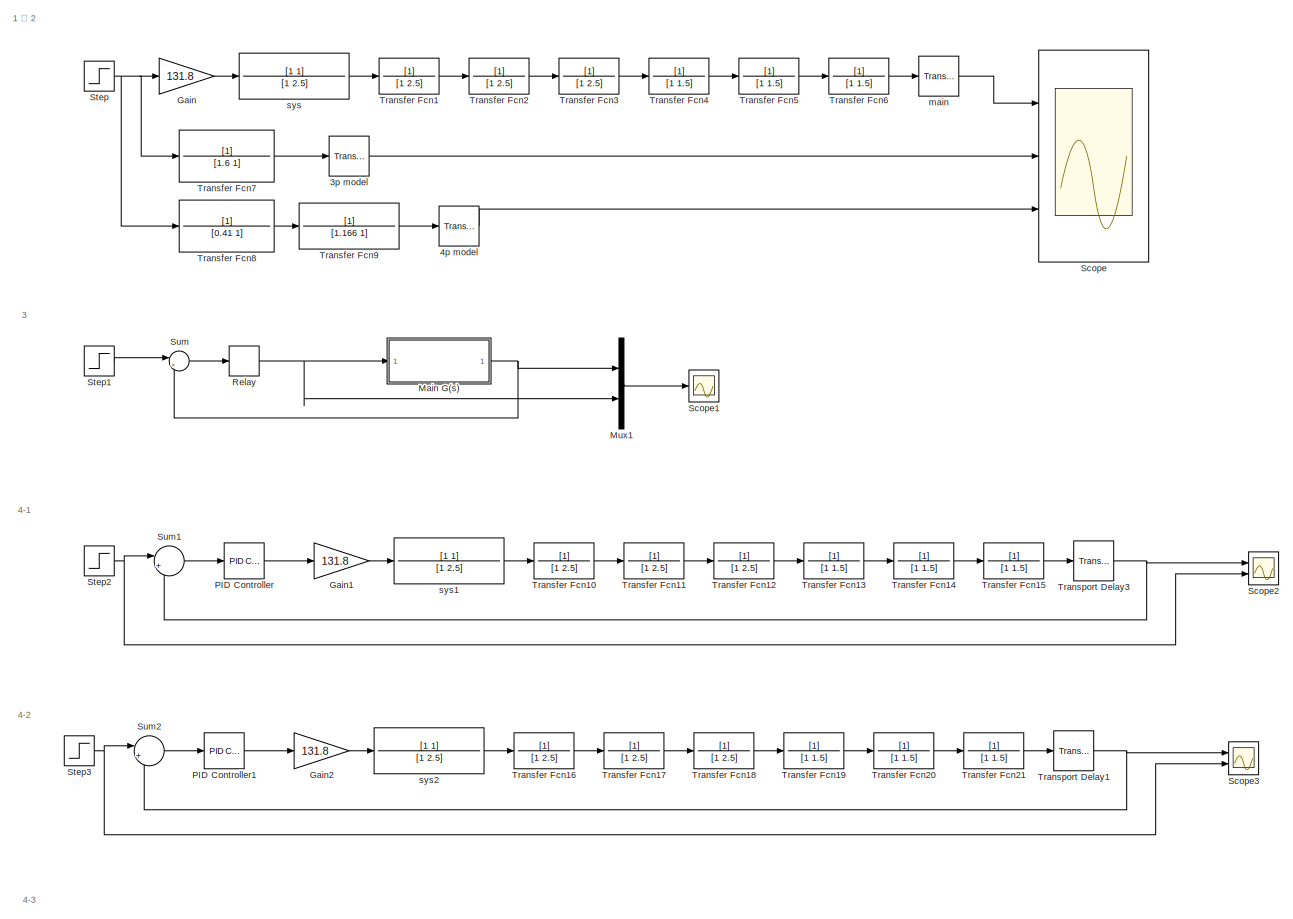
[diagram: root canvas - part 1/3, full width, top band]
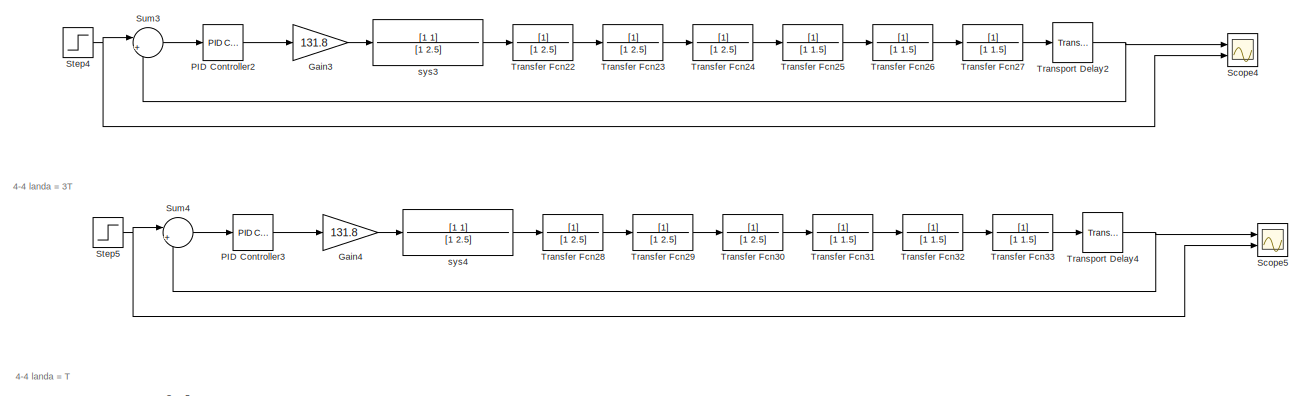
[diagram: root canvas - part 2/3, full width, middle band]
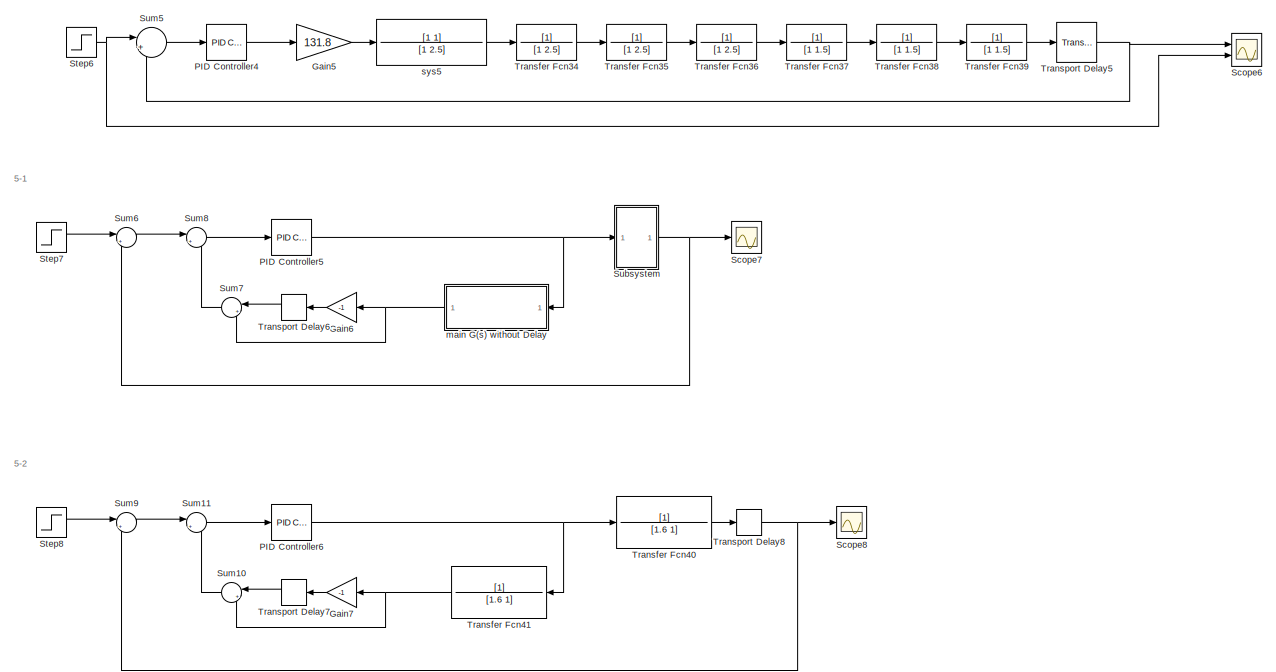
[diagram: root canvas - part 3/3, full width, bottom band]
MODEL slx_435d11db0b20
KIND model
CONFIG AbsTol = auto
CONFIG EnableMultiTasking = off
CONFIG FixedStep = auto
CONFIG MaxStep = auto
CONFIG MinStep = auto
CONFIG RelTol = 1e-3
CONFIG SampleTimeConstraint = Unconstrained
CONFIG SolverName = VariableStepAuto
CONFIG StartTime = 0.0
CONFIG StopTime = 200
BLOCK [TransportDelay] 3p model
  DelayTime = 3.7
  Ports = [1, 1]
BLOCK [TransportDelay] 4p model
  DelayTime = 3.7
  Ports = [1, 1]
BLOCK [Gain] Gain
  Gain = 131.8
BLOCK [Gain] Gain1
  Gain = 131.8
BLOCK [Gain] Gain2
  Gain = 131.8
BLOCK [Gain] Gain3
  Gain = 131.8
BLOCK [Gain] Gain4
  Gain = 131.8
BLOCK [Gain] Gain5
  Gain = 131.8
BLOCK [Gain] Gain6
  Gain = -1
BLOCK [Gain] Gain7
  Gain = -1
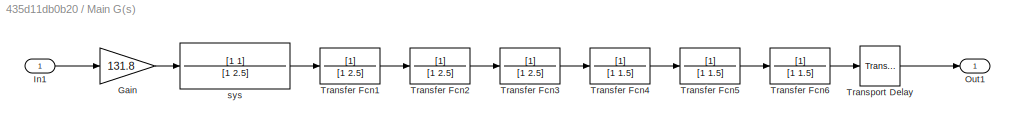
BLOCK [SubSystem] Main G(s)
  Ports = [1, 1]
  RequestExecContextInheritance = off
BLOCK [Gain] Main G(s)/Gain
  Gain = 131.8
BLOCK [Inport] Main G(s)/In1
BLOCK [Outport] Main G(s)/Out1
BLOCK [TransferFcn] Main G(s)/Transfer Fcn1
  Denominator = [1 2.5]
BLOCK [TransferFcn] Main G(s)/Transfer Fcn2
  Denominator = [1 2.5]
BLOCK [TransferFcn] Main G(s)/Transfer Fcn3
  Denominator = [1 2.5]
BLOCK [TransferFcn] Main G(s)/Transfer Fcn4
  Denominator = [1 1.5]
BLOCK [TransferFcn] Main G(s)/Transfer Fcn5
  Denominator = [1 1.5]
BLOCK [TransferFcn] Main G(s)/Transfer Fcn6
  Denominator = [1 1.5]
BLOCK [TransportDelay] Main G(s)/Transport Delay
  DelayTime = 2.5
  Ports = [1, 1]
BLOCK [TransferFcn] Main G(s)/sys
  Denominator = [1 2.5]
  Numerator = [1 1]
BLOCK [Mux] Mux1
  DisplayOption = bar
  Inputs = 2
  Ports = [2, 1]
BLOCK [Reference] PID Controller  REF=pid_lib/PID Controller
  Ports = [1, 1]
  SourceBlock = pid_lib/PID Controller
  SourceProductBaseCode = SL
  SourceType = PID 1dof
BLOCK [Reference] PID Controller1  REF=pid_lib/PID Controller
  Ports = [1, 1]
  SourceBlock = pid_lib/PID Controller
  SourceProductBaseCode = SL
  SourceType = PID 1dof
BLOCK [Reference] PID Controller2  REF=pid_lib/PID Controller
  Ports = [1, 1]
  SourceBlock = pid_lib/PID Controller
  SourceProductBaseCode = SL
  SourceType = PID 1dof
BLOCK [Reference] PID Controller3  REF=pid_lib/PID Controller
  Ports = [1, 1]
  SourceBlock = pid_lib/PID Controller
  SourceProductBaseCode = SL
  SourceType = PID 1dof
BLOCK [Reference] PID Controller4  REF=pid_lib/PID Controller
  Ports = [1, 1]
  SourceBlock = pid_lib/PID Controller
  SourceProductBaseCode = SL
  SourceType = PID 1dof
BLOCK [Reference] PID Controller5  REF=pid_lib/PID Controller
  Ports = [1, 1]
  SourceBlock = pid_lib/PID Controller
  SourceProductBaseCode = SL
  SourceType = PID 1dof
BLOCK [Reference] PID Controller6  REF=pid_lib/PID Controller
  Ports = [1, 1]
  SourceBlock = pid_lib/PID Controller
  SourceProductBaseCode = SL
  SourceType = PID 1dof
BLOCK [Relay] Relay
  OffOutputValue = -5
  OnOutputValue = 5
BLOCK [Scope] Scope
  Floating = off
  NumInputPorts = 3
  Ports = [3]
  ScopeSpecificationString = Simulink.scopes.TimeScopeBlockCfg('CurrentConfiguration', extmgr.ConfigurationSet(extmgr.Configuration('Core','General UI',true),extmgr.Configuration('Core','Source UI',true),extmgr.Configuration('Sources','WiredSimulink',true),extmgr.Configuration('Visuals','Time Domain',true,'SerializedDisplays',{struct('MinYLimReal','-0.12517','MaxYLimReal','1.12652','YLabelReal','','MinYLimMag','0.00000','MaxY...<+1454ch>
BLOCK [Scope] Scope1
  Floating = off
  NumInputPorts = 1
  Ports = [1]
  ScopeSpecificationString = Simulink.scopes.TimeScopeBlockCfg('CurrentConfiguration', extmgr.ConfigurationSet(extmgr.Configuration('Core','General UI',true,'FigureColor',[0 0 0]),extmgr.Configuration('Core','Source UI',true),extmgr.Configuration('Sources','WiredSimulink',true,'DataLoggingVariableName','ScopeData1'),extmgr.Configuration('Visuals','Time Domain',true,'SerializedDisplays',{struct('MinYLimReal','-6.25','MaxYLimRe...<+2168ch>
BLOCK [Scope] Scope2
  Floating = off
  NumInputPorts = 2
  Ports = [2]
  ScopeSpecificationString = Simulink.scopes.TimeScopeBlockCfg('CurrentConfiguration', extmgr.ConfigurationSet(extmgr.Configuration('Core','General UI',true),extmgr.Configuration('Core','Source UI',true),extmgr.Configuration('Sources','WiredSimulink',true,'DataLoggingVariableName','ScopeData1'),extmgr.Configuration('Visuals','Time Domain',true,'SerializedDisplays',{struct('MinYLimReal','-0.125','MaxYLimReal','1.125','YLabelRe...<+1411ch>
BLOCK [Scope] Scope3
  Floating = off
  NumInputPorts = 2
  Ports = [2]
  ScopeSpecificationString = Simulink.scopes.TimeScopeBlockCfg('CurrentConfiguration', extmgr.ConfigurationSet(extmgr.Configuration('Core','General UI',true),extmgr.Configuration('Core','Source UI',true),extmgr.Configuration('Sources','WiredSimulink',true,'DataLoggingVariableName','ScopeData1'),extmgr.Configuration('Visuals','Time Domain',true,'SerializedDisplays',{struct('MinYLimReal','-0.16438','MaxYLimReal','1.47938','YLab...<+1423ch>
BLOCK [Scope] Scope4
  Floating = off
  NumInputPorts = 2
  Ports = [2]
  ScopeSpecificationString = Simulink.scopes.TimeScopeBlockCfg('CurrentConfiguration', extmgr.ConfigurationSet(extmgr.Configuration('Core','General UI',true),extmgr.Configuration('Core','Source UI',true),extmgr.Configuration('Sources','WiredSimulink',true,'DataLoggingVariableName','ScopeData2'),extmgr.Configuration('Visuals','Time Domain',true,'SerializedDisplays',{struct('MinYLimReal','-0.125','MaxYLimReal','1.125','YLabelRe...<+1411ch>
BLOCK [Scope] Scope5
  Floating = off
  NumInputPorts = 2
  Ports = [2]
  ScopeSpecificationString = Simulink.scopes.TimeScopeBlockCfg('CurrentConfiguration', extmgr.ConfigurationSet(extmgr.Configuration('Core','General UI',true),extmgr.Configuration('Core','Source UI',true),extmgr.Configuration('Sources','WiredSimulink',true,'DataLoggingVariableName','ScopeData3'),extmgr.Configuration('Visuals','Time Domain',true,'SerializedDisplays',{struct('MinYLimReal','-0.125','MaxYLimReal','1.125','YLabelRe...<+1411ch>
BLOCK [Scope] Scope6
  Floating = off
  NumInputPorts = 2
  Ports = [2]
  ScopeSpecificationString = Simulink.scopes.TimeScopeBlockCfg('CurrentConfiguration', extmgr.ConfigurationSet(extmgr.Configuration('Core','General UI',true),extmgr.Configuration('Core','Source UI',true),extmgr.Configuration('Sources','WiredSimulink',true,'DataLoggingVariableName','ScopeData4'),extmgr.Configuration('Visuals','Time Domain',true,'SerializedDisplays',{struct('MinYLimReal','-0.21175','MaxYLimReal','1.90578','YLab...<+1423ch>
BLOCK [Scope] Scope7
  Floating = off
  NumInputPorts = 1
  Ports = [1]
  ScopeSpecificationString = Simulink.scopes.TimeScopeBlockCfg('CurrentConfiguration', extmgr.ConfigurationSet(extmgr.Configuration('Core','General UI',true,'FigureColor',[0 0 0]),extmgr.Configuration('Core','Source UI',true),extmgr.Configuration('Sources','WiredSimulink',true,'DataLoggingVariableName','ScopeData5'),extmgr.Configuration('Visuals','Time Domain',true,'SerializedDisplays',{struct('MinYLimReal','-0.16719','MaxYLi...<+1831ch>
BLOCK [Scope] Scope8
  Floating = off
  NumInputPorts = 1
  Ports = [1]
  ScopeSpecificationString = Simulink.scopes.TimeScopeBlockCfg('CurrentConfiguration', extmgr.ConfigurationSet(extmgr.Configuration('Core','General UI',true,'FigureColor',[0 0 0]),extmgr.Configuration('Core','Source UI',true),extmgr.Configuration('Sources','WiredSimulink',true,'DataLoggingVariableName','ScopeData1'),extmgr.Configuration('Visuals','Time Domain',true,'SerializedDisplays',{struct('MinYLimReal','-0.16719','MaxYLi...<+1831ch>
BLOCK [Step] Step
  SampleTime = 0
  Time = 0
BLOCK [Step] Step1
  SampleTime = 0
  Time = 0
BLOCK [Step] Step2
  SampleTime = 0
BLOCK [Step] Step3
  SampleTime = 0
BLOCK [Step] Step4
  SampleTime = 0
BLOCK [Step] Step5
  SampleTime = 0
BLOCK [Step] Step6
  SampleTime = 0
BLOCK [Step] Step7
  SampleTime = 0
  Time = 0
BLOCK [Step] Step8
  SampleTime = 0
  Time = 0
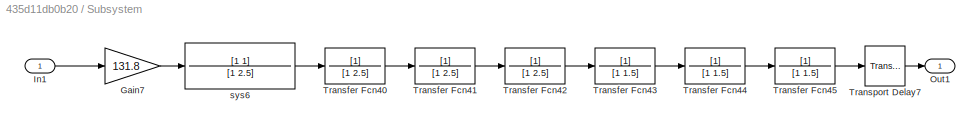
BLOCK [SubSystem] Subsystem
  Ports = [1, 1]
  RequestExecContextInheritance = off
BLOCK [Gain] Subsystem/Gain7
  Gain = 131.8
BLOCK [Inport] Subsystem/In1
BLOCK [Outport] Subsystem/Out1
BLOCK [TransferFcn] Subsystem/Transfer Fcn40
  Denominator = [1 2.5]
BLOCK [TransferFcn] Subsystem/Transfer Fcn41
  Denominator = [1 2.5]
BLOCK [TransferFcn] Subsystem/Transfer Fcn42
  Denominator = [1 2.5]
BLOCK [TransferFcn] Subsystem/Transfer Fcn43
  Denominator = [1 1.5]
BLOCK [TransferFcn] Subsystem/Transfer Fcn44
  Denominator = [1 1.5]
BLOCK [TransferFcn] Subsystem/Transfer Fcn45
  Denominator = [1 1.5]
BLOCK [TransportDelay] Subsystem/Transport Delay7
  DelayTime = 2.5
  Ports = [1, 1]
BLOCK [TransferFcn] Subsystem/sys6
  Denominator = [1 2.5]
  Numerator = [1 1]
BLOCK [Sum] Sum
  Inputs = |+-
  Ports = [2, 1]
BLOCK [Sum] Sum1
  Inputs = |+-
  Ports = [2, 1]
BLOCK [Sum] Sum10
  Inputs = |++
  Ports = [2, 1]
BLOCK [Sum] Sum11
  Inputs = |+-
  Ports = [2, 1]
BLOCK [Sum] Sum2
  Inputs = |+-
  Ports = [2, 1]
BLOCK [Sum] Sum3
  Inputs = |+-
  Ports = [2, 1]
BLOCK [Sum] Sum4
  Inputs = |+-
  Ports = [2, 1]
BLOCK [Sum] Sum5
  Inputs = |+-
  Ports = [2, 1]
BLOCK [Sum] Sum6
  Inputs = |+-
  Ports = [2, 1]
BLOCK [Sum] Sum7
  Inputs = |++
  Ports = [2, 1]
BLOCK [Sum] Sum8
  Inputs = |+-
  Ports = [2, 1]
BLOCK [Sum] Sum9
  Inputs = |+-
  Ports = [2, 1]
BLOCK [TransferFcn] Transfer Fcn1
  Denominator = [1 2.5]
BLOCK [TransferFcn] Transfer Fcn10
  Denominator = [1 2.5]
BLOCK [TransferFcn] Transfer Fcn11
  Denominator = [1 2.5]
BLOCK [TransferFcn] Transfer Fcn12
  Denominator = [1 2.5]
BLOCK [TransferFcn] Transfer Fcn13
  Denominator = [1 1.5]
BLOCK [TransferFcn] Transfer Fcn14
  Denominator = [1 1.5]
BLOCK [TransferFcn] Transfer Fcn15
  Denominator = [1 1.5]
BLOCK [TransferFcn] Transfer Fcn16
  Denominator = [1 2.5]
BLOCK [TransferFcn] Transfer Fcn17
  Denominator = [1 2.5]
BLOCK [TransferFcn] Transfer Fcn18
  Denominator = [1 2.5]
BLOCK [TransferFcn] Transfer Fcn19
  Denominator = [1 1.5]
BLOCK [TransferFcn] Transfer Fcn2
  Denominator = [1 2.5]
BLOCK [TransferFcn] Transfer Fcn20
  Denominator = [1 1.5]
BLOCK [TransferFcn] Transfer Fcn21
  Denominator = [1 1.5]
BLOCK [TransferFcn] Transfer Fcn22
  Denominator = [1 2.5]
BLOCK [TransferFcn] Transfer Fcn23
  Denominator = [1 2.5]
BLOCK [TransferFcn] Transfer Fcn24
  Denominator = [1 2.5]
BLOCK [TransferFcn] Transfer Fcn25
  Denominator = [1 1.5]
BLOCK [TransferFcn] Transfer Fcn26
  Denominator = [1 1.5]
BLOCK [TransferFcn] Transfer Fcn27
  Denominator = [1 1.5]
BLOCK [TransferFcn] Transfer Fcn28
  Denominator = [1 2.5]
BLOCK [TransferFcn] Transfer Fcn29
  Denominator = [1 2.5]
BLOCK [TransferFcn] Transfer Fcn3
  Denominator = [1 2.5]
BLOCK [TransferFcn] Transfer Fcn30
  Denominator = [1 2.5]
BLOCK [TransferFcn] Transfer Fcn31
  Denominator = [1 1.5]
BLOCK [TransferFcn] Transfer Fcn32
  Denominator = [1 1.5]
BLOCK [TransferFcn] Transfer Fcn33
  Denominator = [1 1.5]
BLOCK [TransferFcn] Transfer Fcn34
  Denominator = [1 2.5]
BLOCK [TransferFcn] Transfer Fcn35
  Denominator = [1 2.5]
BLOCK [TransferFcn] Transfer Fcn36
  Denominator = [1 2.5]
BLOCK [TransferFcn] Transfer Fcn37
  Denominator = [1 1.5]
BLOCK [TransferFcn] Transfer Fcn38
  Denominator = [1 1.5]
BLOCK [TransferFcn] Transfer Fcn39
  Denominator = [1 1.5]
BLOCK [TransferFcn] Transfer Fcn4
  Denominator = [1 1.5]
BLOCK [TransferFcn] Transfer Fcn40
  Denominator = [1.6 1]
BLOCK [TransferFcn] Transfer Fcn41
  Denominator = [1.6 1]
  NameLocation = top
BLOCK [TransferFcn] Transfer Fcn5
  Denominator = [1 1.5]
BLOCK [TransferFcn] Transfer Fcn6
  Denominator = [1 1.5]
BLOCK [TransferFcn] Transfer Fcn7
  Denominator = [1.6 1]
BLOCK [TransferFcn] Transfer Fcn8
  Denominator = [0.41 1]
BLOCK [TransferFcn] Transfer Fcn9
  Denominator = [1.166 1]
BLOCK [TransportDelay] Transport Delay1
  DelayTime = 2.5
  Ports = [1, 1]
BLOCK [TransportDelay] Transport Delay2
  DelayTime = 2.5
  Ports = [1, 1]
BLOCK [TransportDelay] Transport Delay3
  DelayTime = 2.5
  Ports = [1, 1]
BLOCK [TransportDelay] Transport Delay4
  DelayTime = 2.5
  Ports = [1, 1]
BLOCK [TransportDelay] Transport Delay5
  DelayTime = 2.5
  Ports = [1, 1]
BLOCK [TransportDelay] Transport Delay6
  DelayTime = 3.7
  Ports = [1, 1]
BLOCK [TransportDelay] Transport Delay7
  DelayTime = 3.7
  Ports = [1, 1]
BLOCK [TransportDelay] Transport Delay8
  DelayTime = 3.7
  NameLocation = top
  Ports = [1, 1]
BLOCK [TransportDelay] main
  DelayTime = 2.5
  Ports = [1, 1]
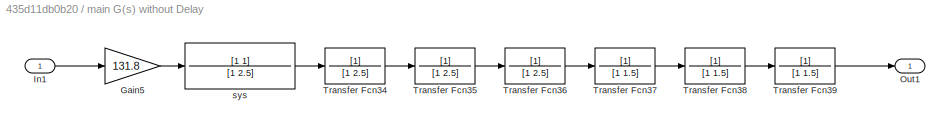
BLOCK [SubSystem] main G(s) without Delay
  NameLocation = top
  Ports = [1, 1]
  RequestExecContextInheritance = off
BLOCK [Gain] main G(s) without Delay/Gain5
  Gain = 131.8
BLOCK [Inport] main G(s) without Delay/In1
BLOCK [Outport] main G(s) without Delay/Out1
BLOCK [TransferFcn] main G(s) without Delay/Transfer Fcn34
  Denominator = [1 2.5]
BLOCK [TransferFcn] main G(s) without Delay/Transfer Fcn35
  Denominator = [1 2.5]
BLOCK [TransferFcn] main G(s) without Delay/Transfer Fcn36
  Denominator = [1 2.5]
BLOCK [TransferFcn] main G(s) without Delay/Transfer Fcn37
  Denominator = [1 1.5]
BLOCK [TransferFcn] main G(s) without Delay/Transfer Fcn38
  Denominator = [1 1.5]
BLOCK [TransferFcn] main G(s) without Delay/Transfer Fcn39
  Denominator = [1 1.5]
BLOCK [TransferFcn] main G(s) without Delay/sys
  Denominator = [1 2.5]
  Numerator = [1 1]
BLOCK [TransferFcn] sys
  Denominator = [1 2.5]
  Numerator = [1 1]
BLOCK [TransferFcn] sys1
  Denominator = [1 2.5]
  Numerator = [1 1]
BLOCK [TransferFcn] sys2
  Denominator = [1 2.5]
  Numerator = [1 1]
BLOCK [TransferFcn] sys3
  Denominator = [1 2.5]
  Numerator = [1 1]
BLOCK [TransferFcn] sys4
  Denominator = [1 2.5]
  Numerator = [1 1]
BLOCK [TransferFcn] sys5
  Denominator = [1 2.5]
  Numerator = [1 1]
ANNOTATION (root): 1 و 2
ANNOTATION (root): 3
ANNOTATION (root): 4-1
ANNOTATION (root): 4-2
ANNOTATION (root): 4-3
ANNOTATION (root): 4-4 landa = 3T
ANNOTATION (root): 4-4 landa = T
ANNOTATION (root): 5-1
ANNOTATION (root): 5-2
LINE 3p model:1 -> Scope:2
LINE 4p model:1 -> Scope:3
LINE Gain1:1 -> sys1:1
LINE Gain2:1 -> sys2:1
LINE Gain3:1 -> sys3:1
LINE Gain4:1 -> sys4:1
LINE Gain5:1 -> sys5:1
LINE Gain6:1 -> Transport Delay6:1
LINE Gain7:1 -> Transport Delay7:1
LINE Gain:1 -> sys:1
LINE Main G(s)/Gain:1 -> Main G(s)/sys:1
LINE Main G(s)/In1:1 -> Main G(s)/Gain:1
LINE Main G(s)/Transfer Fcn1:1 -> Main G(s)/Transfer Fcn2:1
LINE Main G(s)/Transfer Fcn2:1 -> Main G(s)/Transfer Fcn3:1
LINE Main G(s)/Transfer Fcn3:1 -> Main G(s)/Transfer Fcn4:1
LINE Main G(s)/Transfer Fcn4:1 -> Main G(s)/Transfer Fcn5:1
LINE Main G(s)/Transfer Fcn5:1 -> Main G(s)/Transfer Fcn6:1
LINE Main G(s)/Transfer Fcn6:1 -> Main G(s)/Transport Delay:1
LINE Main G(s)/Transport Delay:1 -> Main G(s)/Out1:1
LINE Main G(s)/sys:1 -> Main G(s)/Transfer Fcn1:1
NET Main G(s):1 -> Mux1:1, Sum:2
LINE Mux1:1 -> Scope1:1
LINE PID Controller1:1 -> Gain2:1
LINE PID Controller2:1 -> Gain3:1
LINE PID Controller3:1 -> Gain4:1
LINE PID Controller4:1 -> Gain5:1
NET PID Controller5:1 -> Subsystem:1, main G(s) without Delay:1
NET PID Controller6:1 -> Transfer Fcn40:1, Transfer Fcn41:1
LINE PID Controller:1 -> Gain1:1
NET Relay:1 -> Main G(s):1, Mux1:2
LINE Step1:1 -> Sum:1
NET Step2:1 -> Scope2:2, Sum1:1
NET Step3:1 -> Scope3:2, Sum2:1
NET Step4:1 -> Scope4:2, Sum3:1
NET Step5:1 -> Scope5:2, Sum4:1
NET Step6:1 -> Scope6:2, Sum5:1
LINE Step7:1 -> Sum6:1
LINE Step8:1 -> Sum9:1
NET Step:1 -> Gain:1, Transfer Fcn7:1, Transfer Fcn8:1
LINE Subsystem/Gain7:1 -> Subsystem/sys6:1
LINE Subsystem/In1:1 -> Subsystem/Gain7:1
LINE Subsystem/Transfer Fcn40:1 -> Subsystem/Transfer Fcn41:1
LINE Subsystem/Transfer Fcn41:1 -> Subsystem/Transfer Fcn42:1
LINE Subsystem/Transfer Fcn42:1 -> Subsystem/Transfer Fcn43:1
LINE Subsystem/Transfer Fcn43:1 -> Subsystem/Transfer Fcn44:1
LINE Subsystem/Transfer Fcn44:1 -> Subsystem/Transfer Fcn45:1
LINE Subsystem/Transfer Fcn45:1 -> Subsystem/Transport Delay7:1
LINE Subsystem/Transport Delay7:1 -> Subsystem/Out1:1
LINE Subsystem/sys6:1 -> Subsystem/Transfer Fcn40:1
NET Subsystem:1 -> Scope7:1, Sum6:2
LINE Sum10:1 -> Sum11:2
LINE Sum11:1 -> PID Controller6:1
LINE Sum1:1 -> PID Controller:1
LINE Sum2:1 -> PID Controller1:1
LINE Sum3:1 -> PID Controller2:1
LINE Sum4:1 -> PID Controller3:1
LINE Sum5:1 -> PID Controller4:1
LINE Sum6:1 -> Sum8:1
LINE Sum7:1 -> Sum8:2
LINE Sum8:1 -> PID Controller5:1
LINE Sum9:1 -> Sum11:1
LINE Sum:1 -> Relay:1
LINE Transfer Fcn10:1 -> Transfer Fcn11:1
LINE Transfer Fcn11:1 -> Transfer Fcn12:1
LINE Transfer Fcn12:1 -> Transfer Fcn13:1
LINE Transfer Fcn13:1 -> Transfer Fcn14:1
LINE Transfer Fcn14:1 -> Transfer Fcn15:1
LINE Transfer Fcn15:1 -> Transport Delay3:1
LINE Transfer Fcn16:1 -> Transfer Fcn17:1
LINE Transfer Fcn17:1 -> Transfer Fcn18:1
LINE Transfer Fcn18:1 -> Transfer Fcn19:1
LINE Transfer Fcn19:1 -> Transfer Fcn20:1
LINE Transfer Fcn1:1 -> Transfer Fcn2:1
LINE Transfer Fcn20:1 -> Transfer Fcn21:1
LINE Transfer Fcn21:1 -> Transport Delay1:1
LINE Transfer Fcn22:1 -> Transfer Fcn23:1
LINE Transfer Fcn23:1 -> Transfer Fcn24:1
LINE Transfer Fcn24:1 -> Transfer Fcn25:1
LINE Transfer Fcn25:1 -> Transfer Fcn26:1
LINE Transfer Fcn26:1 -> Transfer Fcn27:1
LINE Transfer Fcn27:1 -> Transport Delay2:1
LINE Transfer Fcn28:1 -> Transfer Fcn29:1
LINE Transfer Fcn29:1 -> Transfer Fcn30:1
LINE Transfer Fcn2:1 -> Transfer Fcn3:1
LINE Transfer Fcn30:1 -> Transfer Fcn31:1
LINE Transfer Fcn31:1 -> Transfer Fcn32:1
LINE Transfer Fcn32:1 -> Transfer Fcn33:1
LINE Transfer Fcn33:1 -> Transport Delay4:1
LINE Transfer Fcn34:1 -> Transfer Fcn35:1
LINE Transfer Fcn35:1 -> Transfer Fcn36:1
LINE Transfer Fcn36:1 -> Transfer Fcn37:1
LINE Transfer Fcn37:1 -> Transfer Fcn38:1
LINE Transfer Fcn38:1 -> Transfer Fcn39:1
LINE Transfer Fcn39:1 -> Transport Delay5:1
LINE Transfer Fcn3:1 -> Transfer Fcn4:1
LINE Transfer Fcn40:1 -> Transport Delay8:1
NET Transfer Fcn41:1 -> Gain7:1, Sum10:2
LINE Transfer Fcn4:1 -> Transfer Fcn5:1
LINE Transfer Fcn5:1 -> Transfer Fcn6:1
LINE Transfer Fcn6:1 -> main:1
LINE Transfer Fcn7:1 -> 3p model:1
LINE Transfer Fcn8:1 -> Transfer Fcn9:1
LINE Transfer Fcn9:1 -> 4p model:1
NET Transport Delay1:1 -> Scope3:1, Sum2:2
NET Transport Delay2:1 -> Scope4:1, Sum3:2
NET Transport Delay3:1 -> Scope2:1, Sum1:2
NET Transport Delay4:1 -> Scope5:1, Sum4:2
NET Transport Delay5:1 -> Scope6:1, Sum5:2
LINE Transport Delay6:1 -> Sum7:1
LINE Transport Delay7:1 -> Sum10:1
NET Transport Delay8:1 -> Scope8:1, Sum9:2
LINE main G(s) without Delay/Gain5:1 -> main G(s) without Delay/sys:1
LINE main G(s) without Delay/In1:1 -> main G(s) without Delay/Gain5:1
LINE main G(s) without Delay/Transfer Fcn34:1 -> main G(s) without Delay/Transfer Fcn35:1
LINE main G(s) without Delay/Transfer Fcn35:1 -> main G(s) without Delay/Transfer Fcn36:1
LINE main G(s) without Delay/Transfer Fcn36:1 -> main G(s) without Delay/Transfer Fcn37:1
LINE main G(s) without Delay/Transfer Fcn37:1 -> main G(s) without Delay/Transfer Fcn38:1
LINE main G(s) without Delay/Transfer Fcn38:1 -> main G(s) without Delay/Transfer Fcn39:1
LINE main G(s) without Delay/Transfer Fcn39:1 -> main G(s) without Delay/Out1:1
LINE main G(s) without Delay/sys:1 -> main G(s) without Delay/Transfer Fcn34:1
NET main G(s) without Delay:1 -> Gain6:1, Sum7:2
LINE main:1 -> Scope:1
LINE sys1:1 -> Transfer Fcn10:1
LINE sys2:1 -> Transfer Fcn16:1
LINE sys3:1 -> Transfer Fcn22:1
LINE sys4:1 -> Transfer Fcn28:1
LINE sys5:1 -> Transfer Fcn34:1
LINE sys:1 -> Transfer Fcn1:1
note: NET lines group one-source signal fan-out (src -> all destinations, sorted); 1:1 wires keep LINE
